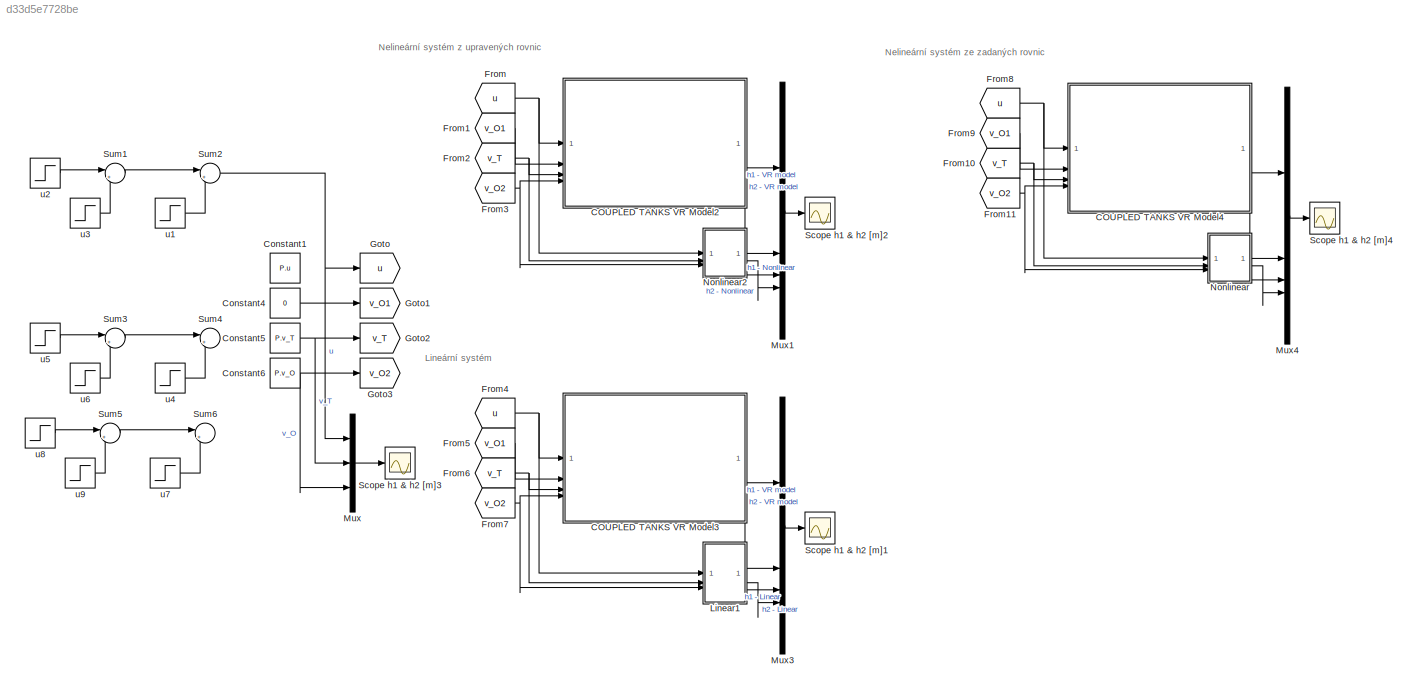
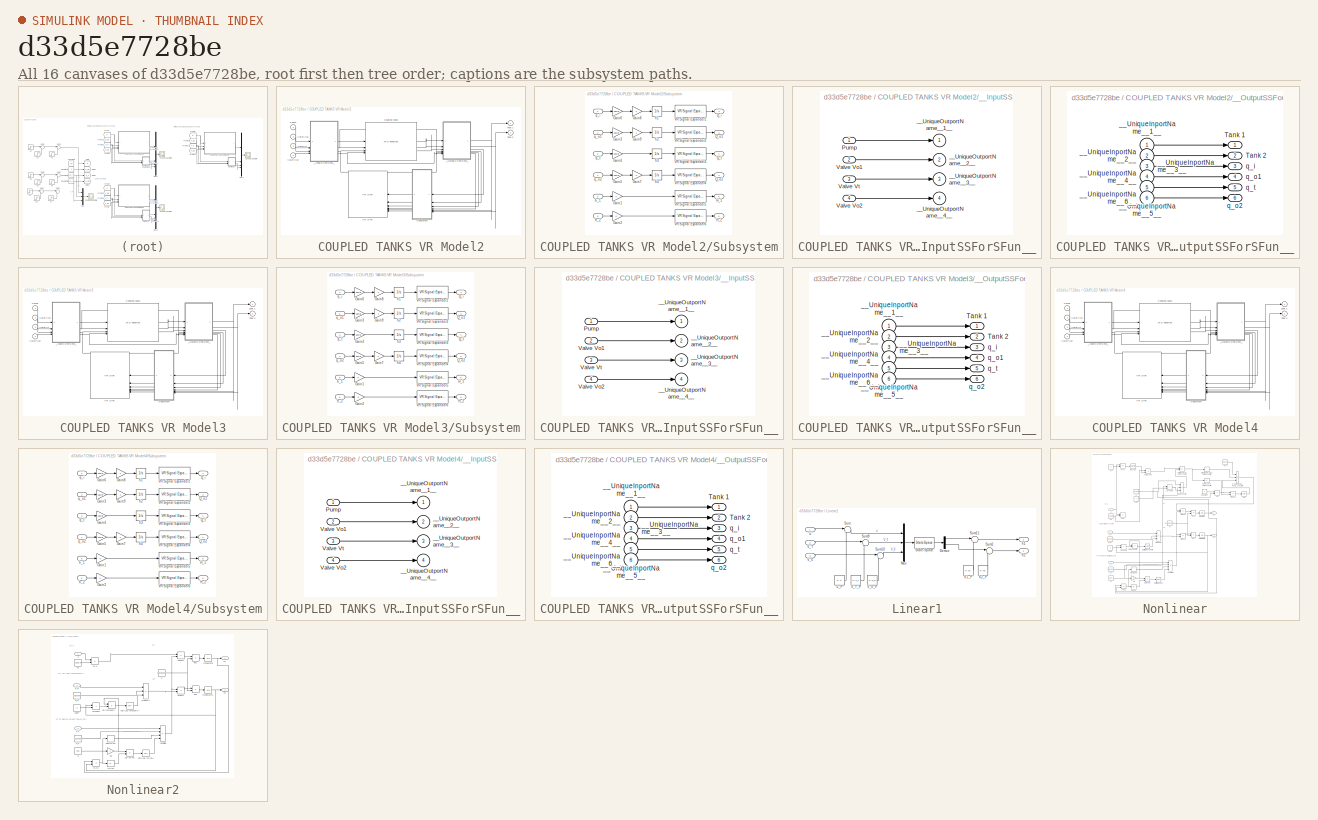
[diagram: thumbnail index - all 16 canvases of the model, root first then tree order]
MODEL slx_d33d5e7728be
KIND model
CONFIG AbsTol = auto
CONFIG EnableMultiTasking = off
CONFIG FixedStep = auto
CONFIG MaxStep = auto
CONFIG MinStep = auto
CONFIG RelTol = 1e-3
CONFIG SampleTimeConstraint = Unconstrained
CONFIG SolverName = VariableStepAuto
CONFIG StartTime = 0.0
CONFIG StopTime = 400
BLOCK [SubSystem] COUPLED TANKS VR Model2
BLOCK [M-S-Function] COUPLED TANKS VR Model2/Coupled tanks
  FunctionName = CoupledProngTanks
  Parameters = h10 h20
BLOCK [Inport] COUPLED TANKS VR Model2/Pump
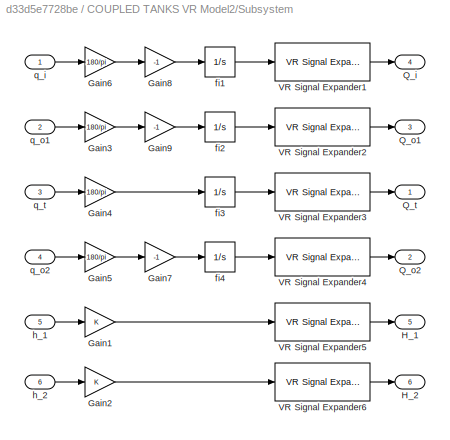
BLOCK [SubSystem] COUPLED TANKS VR Model2/Subsystem
BLOCK [Gain] COUPLED TANKS VR Model2/Subsystem/Gain1
BLOCK [Gain] COUPLED TANKS VR Model2/Subsystem/Gain2
BLOCK [Gain] COUPLED TANKS VR Model2/Subsystem/Gain3
  Gain = 180/pi
BLOCK [Gain] COUPLED TANKS VR Model2/Subsystem/Gain4
  Gain = 180/pi
BLOCK [Gain] COUPLED TANKS VR Model2/Subsystem/Gain5
  Gain = 180/pi
BLOCK [Gain] COUPLED TANKS VR Model2/Subsystem/Gain6
  Gain = 180/pi
BLOCK [Gain] COUPLED TANKS VR Model2/Subsystem/Gain7
  Gain = -1
BLOCK [Gain] COUPLED TANKS VR Model2/Subsystem/Gain8
  Gain = -1
BLOCK [Gain] COUPLED TANKS VR Model2/Subsystem/Gain9
  Gain = -1
BLOCK [Outport] COUPLED TANKS VR Model2/Subsystem/H_1
  Port = 5
BLOCK [Outport] COUPLED TANKS VR Model2/Subsystem/H_2
  Port = 6
BLOCK [Outport] COUPLED TANKS VR Model2/Subsystem/Q_i
  Port = 4
BLOCK [Outport] COUPLED TANKS VR Model2/Subsystem/Q_o1
  Port = 3
BLOCK [Outport] COUPLED TANKS VR Model2/Subsystem/Q_o2
  Port = 2
BLOCK [Outport] COUPLED TANKS VR Model2/Subsystem/Q_t
BLOCK [Reference] COUPLED TANKS VR Model2/Subsystem/VR Signal Expander1  REF=vrlib/VR Signal Expander
  SourceBlock = vrlib/VR Signal Expander
  SourceType = VR Signal Expander
BLOCK [Reference] COUPLED TANKS VR Model2/Subsystem/VR Signal Expander2  REF=vrlib/VR Signal Expander
  SourceBlock = vrlib/VR Signal Expander
  SourceType = VR Signal Expander
BLOCK [Reference] COUPLED TANKS VR Model2/Subsystem/VR Signal Expander3  REF=vrlib/VR Signal Expander
  SourceBlock = vrlib/VR Signal Expander
  SourceType = VR Signal Expander
BLOCK [Reference] COUPLED TANKS VR Model2/Subsystem/VR Signal Expander4  REF=vrlib/VR Signal Expander
  SourceBlock = vrlib/VR Signal Expander
  SourceType = VR Signal Expander
BLOCK [Reference] COUPLED TANKS VR Model2/Subsystem/VR Signal Expander5  REF=vrlib/VR Signal Expander
  SourceBlock = vrlib/VR Signal Expander
  SourceType = VR Signal Expander
BLOCK [Reference] COUPLED TANKS VR Model2/Subsystem/VR Signal Expander6  REF=vrlib/VR Signal Expander
  SourceBlock = vrlib/VR Signal Expander
  SourceType = VR Signal Expander
BLOCK [Integrator] COUPLED TANKS VR Model2/Subsystem/fi1
BLOCK [Integrator] COUPLED TANKS VR Model2/Subsystem/fi2
BLOCK [Integrator] COUPLED TANKS VR Model2/Subsystem/fi3
BLOCK [Integrator] COUPLED TANKS VR Model2/Subsystem/fi4
BLOCK [Inport] COUPLED TANKS VR Model2/Subsystem/h_1
  Port = 5
BLOCK [Inport] COUPLED TANKS VR Model2/Subsystem/h_2
  Port = 6
BLOCK [Inport] COUPLED TANKS VR Model2/Subsystem/q_i
BLOCK [Inport] COUPLED TANKS VR Model2/Subsystem/q_o1
  Port = 2
BLOCK [Inport] COUPLED TANKS VR Model2/Subsystem/q_o2
  Port = 4
BLOCK [Inport] COUPLED TANKS VR Model2/Subsystem/q_t
  Port = 3
BLOCK [Outport] COUPLED TANKS VR Model2/Tank 1
  NameLocation = top
  OutDataTypeStr = double
  PortDimensions = 1
  SampleTime = [-1 0]
  SignalType = real
BLOCK [Outport] COUPLED TANKS VR Model2/Tank 2
  OutDataTypeStr = double
  Port = 2
  PortDimensions = 1
  SampleTime = [-1 0]
  SignalType = real
BLOCK [Reference] COUPLED TANKS VR Model2/VR Sink  REF=vrlib/VR Sink
  InstantiateOnLoad = on
  SourceBlock = vrlib/VR Sink
  SourceType = Virtual Reality Sink
BLOCK [Inport] COUPLED TANKS VR Model2/Valve Vo1
  Port = 2
BLOCK [Inport] COUPLED TANKS VR Model2/Valve Vo2
  Port = 4
BLOCK [Inport] COUPLED TANKS VR Model2/Valve Vt
  Port = 3
BLOCK [SubSystem] COUPLED TANKS VR Model2/__InputSSForSFun__
  PermitHierarchicalResolution = ExplicitOnly
BLOCK [Inport] COUPLED TANKS VR Model2/__InputSSForSFun__/Pump
BLOCK [Inport] COUPLED TANKS VR Model2/__InputSSForSFun__/Valve Vo1
  NameLocation = top
  Port = 2
BLOCK [Inport] COUPLED TANKS VR Model2/__InputSSForSFun__/Valve Vo2
  Port = 4
BLOCK [Inport] COUPLED TANKS VR Model2/__InputSSForSFun__/Valve Vt
  Port = 3
BLOCK [Outport] COUPLED TANKS VR Model2/__InputSSForSFun__/__UniqueOutportName__1__
BLOCK [Outport] COUPLED TANKS VR Model2/__InputSSForSFun__/__UniqueOutportName__2__
  Port = 2
BLOCK [Outport] COUPLED TANKS VR Model2/__InputSSForSFun__/__UniqueOutportName__3__
  Port = 3
BLOCK [Outport] COUPLED TANKS VR Model2/__InputSSForSFun__/__UniqueOutportName__4__
  Port = 4
BLOCK [SubSystem] COUPLED TANKS VR Model2/__OutputSSForSFun__
  PermitHierarchicalResolution = ExplicitOnly
BLOCK [Outport] COUPLED TANKS VR Model2/__OutputSSForSFun__/Tank 1
  OutDataTypeStr = double
  PortDimensions = 1
  SampleTime = [-1 0]
  SignalType = real
BLOCK [Outport] COUPLED TANKS VR Model2/__OutputSSForSFun__/Tank 2
  OutDataTypeStr = double
  Port = 2
  PortDimensions = 1
  SampleTime = [-1 0]
  SignalType = real
BLOCK [Inport] COUPLED TANKS VR Model2/__OutputSSForSFun__/__UniqueInportName__1__
BLOCK [Inport] COUPLED TANKS VR Model2/__OutputSSForSFun__/__UniqueInportName__2__
  Port = 2
BLOCK [Inport] COUPLED TANKS VR Model2/__OutputSSForSFun__/__UniqueInportName__3__
  Port = 3
BLOCK [Inport] COUPLED TANKS VR Model2/__OutputSSForSFun__/__UniqueInportName__4__
  Port = 4
BLOCK [Inport] COUPLED TANKS VR Model2/__OutputSSForSFun__/__UniqueInportName__5__
  Port = 5
BLOCK [Inport] COUPLED TANKS VR Model2/__OutputSSForSFun__/__UniqueInportName__6__
  Port = 6
BLOCK [Outport] COUPLED TANKS VR Model2/__OutputSSForSFun__/q_i
  OutDataTypeStr = double
  Port = 3
  PortDimensions = 1
  SampleTime = [0 1]
  SignalType = real
BLOCK [Outport] COUPLED TANKS VR Model2/__OutputSSForSFun__/q_o1
  OutDataTypeStr = double
  Port = 4
  PortDimensions = 1
  SampleTime = [-1 0]
  SignalType = real
BLOCK [Outport] COUPLED TANKS VR Model2/__OutputSSForSFun__/q_o2
  OutDataTypeStr = double
  Port = 6
  PortDimensions = 1
  SampleTime = [-1 0]
  SignalType = real
BLOCK [Outport] COUPLED TANKS VR Model2/__OutputSSForSFun__/q_t
  OutDataTypeStr = double
  Port = 5
  PortDimensions = 1
  SampleTime = [-1 0]
  SignalType = real
BLOCK [SubSystem] COUPLED TANKS VR Model3
BLOCK [M-S-Function] COUPLED TANKS VR Model3/Coupled tanks
  FunctionName = CoupledProngTanks
  Parameters = h10 h20
BLOCK [Inport] COUPLED TANKS VR Model3/Pump
BLOCK [SubSystem] COUPLED TANKS VR Model3/Subsystem
BLOCK [Gain] COUPLED TANKS VR Model3/Subsystem/Gain1
BLOCK [Gain] COUPLED TANKS VR Model3/Subsystem/Gain2
BLOCK [Gain] COUPLED TANKS VR Model3/Subsystem/Gain3
  Gain = 180/pi
BLOCK [Gain] COUPLED TANKS VR Model3/Subsystem/Gain4
  Gain = 180/pi
BLOCK [Gain] COUPLED TANKS VR Model3/Subsystem/Gain5
  Gain = 180/pi
BLOCK [Gain] COUPLED TANKS VR Model3/Subsystem/Gain6
  Gain = 180/pi
BLOCK [Gain] COUPLED TANKS VR Model3/Subsystem/Gain7
  Gain = -1
BLOCK [Gain] COUPLED TANKS VR Model3/Subsystem/Gain8
  Gain = -1
BLOCK [Gain] COUPLED TANKS VR Model3/Subsystem/Gain9
  Gain = -1
BLOCK [Outport] COUPLED TANKS VR Model3/Subsystem/H_1
  Port = 5
BLOCK [Outport] COUPLED TANKS VR Model3/Subsystem/H_2
  Port = 6
BLOCK [Outport] COUPLED TANKS VR Model3/Subsystem/Q_i
  Port = 4
BLOCK [Outport] COUPLED TANKS VR Model3/Subsystem/Q_o1
  Port = 3
BLOCK [Outport] COUPLED TANKS VR Model3/Subsystem/Q_o2
  Port = 2
BLOCK [Outport] COUPLED TANKS VR Model3/Subsystem/Q_t
BLOCK [Reference] COUPLED TANKS VR Model3/Subsystem/VR Signal Expander1  REF=vrlib/VR Signal Expander
  SourceBlock = vrlib/VR Signal Expander
  SourceType = VR Signal Expander
BLOCK [Reference] COUPLED TANKS VR Model3/Subsystem/VR Signal Expander2  REF=vrlib/VR Signal Expander
  SourceBlock = vrlib/VR Signal Expander
  SourceType = VR Signal Expander
BLOCK [Reference] COUPLED TANKS VR Model3/Subsystem/VR Signal Expander3  REF=vrlib/VR Signal Expander
  SourceBlock = vrlib/VR Signal Expander
  SourceType = VR Signal Expander
BLOCK [Reference] COUPLED TANKS VR Model3/Subsystem/VR Signal Expander4  REF=vrlib/VR Signal Expander
  SourceBlock = vrlib/VR Signal Expander
  SourceType = VR Signal Expander
BLOCK [Reference] COUPLED TANKS VR Model3/Subsystem/VR Signal Expander5  REF=vrlib/VR Signal Expander
  SourceBlock = vrlib/VR Signal Expander
  SourceType = VR Signal Expander
BLOCK [Reference] COUPLED TANKS VR Model3/Subsystem/VR Signal Expander6  REF=vrlib/VR Signal Expander
  SourceBlock = vrlib/VR Signal Expander
  SourceType = VR Signal Expander
BLOCK [Integrator] COUPLED TANKS VR Model3/Subsystem/fi1
BLOCK [Integrator] COUPLED TANKS VR Model3/Subsystem/fi2
BLOCK [Integrator] COUPLED TANKS VR Model3/Subsystem/fi3
BLOCK [Integrator] COUPLED TANKS VR Model3/Subsystem/fi4
BLOCK [Inport] COUPLED TANKS VR Model3/Subsystem/h_1
  Port = 5
BLOCK [Inport] COUPLED TANKS VR Model3/Subsystem/h_2
  Port = 6
BLOCK [Inport] COUPLED TANKS VR Model3/Subsystem/q_i
BLOCK [Inport] COUPLED TANKS VR Model3/Subsystem/q_o1
  Port = 2
BLOCK [Inport] COUPLED TANKS VR Model3/Subsystem/q_o2
  Port = 4
BLOCK [Inport] COUPLED TANKS VR Model3/Subsystem/q_t
  Port = 3
BLOCK [Outport] COUPLED TANKS VR Model3/Tank 1
  NameLocation = top
  OutDataTypeStr = double
  PortDimensions = 1
  SampleTime = [-1 0]
  SignalType = real
BLOCK [Outport] COUPLED TANKS VR Model3/Tank 2
  OutDataTypeStr = double
  Port = 2
  PortDimensions = 1
  SampleTime = [-1 0]
  SignalType = real
BLOCK [Reference] COUPLED TANKS VR Model3/VR Sink  REF=vrlib/VR Sink
  InstantiateOnLoad = on
  SourceBlock = vrlib/VR Sink
  SourceType = Virtual Reality Sink
BLOCK [Inport] COUPLED TANKS VR Model3/Valve Vo1
  Port = 2
BLOCK [Inport] COUPLED TANKS VR Model3/Valve Vo2
  Port = 4
BLOCK [Inport] COUPLED TANKS VR Model3/Valve Vt
  Port = 3
BLOCK [SubSystem] COUPLED TANKS VR Model3/__InputSSForSFun__
  PermitHierarchicalResolution = ExplicitOnly
BLOCK [Inport] COUPLED TANKS VR Model3/__InputSSForSFun__/Pump
BLOCK [Inport] COUPLED TANKS VR Model3/__InputSSForSFun__/Valve Vo1
  NameLocation = top
  Port = 2
BLOCK [Inport] COUPLED TANKS VR Model3/__InputSSForSFun__/Valve Vo2
  Port = 4
BLOCK [Inport] COUPLED TANKS VR Model3/__InputSSForSFun__/Valve Vt
  Port = 3
BLOCK [Outport] COUPLED TANKS VR Model3/__InputSSForSFun__/__UniqueOutportName__1__
BLOCK [Outport] COUPLED TANKS VR Model3/__InputSSForSFun__/__UniqueOutportName__2__
  Port = 2
BLOCK [Outport] COUPLED TANKS VR Model3/__InputSSForSFun__/__UniqueOutportName__3__
  Port = 3
BLOCK [Outport] COUPLED TANKS VR Model3/__InputSSForSFun__/__UniqueOutportName__4__
  Port = 4
BLOCK [SubSystem] COUPLED TANKS VR Model3/__OutputSSForSFun__
  PermitHierarchicalResolution = ExplicitOnly
BLOCK [Outport] COUPLED TANKS VR Model3/__OutputSSForSFun__/Tank 1
  OutDataTypeStr = double
  PortDimensions = 1
  SampleTime = [-1 0]
  SignalType = real
BLOCK [Outport] COUPLED TANKS VR Model3/__OutputSSForSFun__/Tank 2
  OutDataTypeStr = double
  Port = 2
  PortDimensions = 1
  SampleTime = [-1 0]
  SignalType = real
BLOCK [Inport] COUPLED TANKS VR Model3/__OutputSSForSFun__/__UniqueInportName__1__
BLOCK [Inport] COUPLED TANKS VR Model3/__OutputSSForSFun__/__UniqueInportName__2__
  Port = 2
BLOCK [Inport] COUPLED TANKS VR Model3/__OutputSSForSFun__/__UniqueInportName__3__
  Port = 3
BLOCK [Inport] COUPLED TANKS VR Model3/__OutputSSForSFun__/__UniqueInportName__4__
  Port = 4
BLOCK [Inport] COUPLED TANKS VR Model3/__OutputSSForSFun__/__UniqueInportName__5__
  Port = 5
BLOCK [Inport] COUPLED TANKS VR Model3/__OutputSSForSFun__/__UniqueInportName__6__
  Port = 6
BLOCK [Outport] COUPLED TANKS VR Model3/__OutputSSForSFun__/q_i
  OutDataTypeStr = double
  Port = 3
  PortDimensions = 1
  SampleTime = [0 1]
  SignalType = real
BLOCK [Outport] COUPLED TANKS VR Model3/__OutputSSForSFun__/q_o1
  OutDataTypeStr = double
  Port = 4
  PortDimensions = 1
  SampleTime = [-1 0]
  SignalType = real
BLOCK [Outport] COUPLED TANKS VR Model3/__OutputSSForSFun__/q_o2
  OutDataTypeStr = double
  Port = 6
  PortDimensions = 1
  SampleTime = [-1 0]
  SignalType = real
BLOCK [Outport] COUPLED TANKS VR Model3/__OutputSSForSFun__/q_t
  OutDataTypeStr = double
  Port = 5
  PortDimensions = 1
  SampleTime = [-1 0]
  SignalType = real
BLOCK [SubSystem] COUPLED TANKS VR Model4
  Commented = on
BLOCK [M-S-Function] COUPLED TANKS VR Model4/Coupled tanks
  FunctionName = CoupledProngTanks
  Parameters = h10 h20
BLOCK [Inport] COUPLED TANKS VR Model4/Pump
BLOCK [SubSystem] COUPLED TANKS VR Model4/Subsystem
BLOCK [Gain] COUPLED TANKS VR Model4/Subsystem/Gain1
BLOCK [Gain] COUPLED TANKS VR Model4/Subsystem/Gain2
BLOCK [Gain] COUPLED TANKS VR Model4/Subsystem/Gain3
  Gain = 180/pi
BLOCK [Gain] COUPLED TANKS VR Model4/Subsystem/Gain4
  Gain = 180/pi
BLOCK [Gain] COUPLED TANKS VR Model4/Subsystem/Gain5
  Gain = 180/pi
BLOCK [Gain] COUPLED TANKS VR Model4/Subsystem/Gain6
  Gain = 180/pi
BLOCK [Gain] COUPLED TANKS VR Model4/Subsystem/Gain7
  Gain = -1
BLOCK [Gain] COUPLED TANKS VR Model4/Subsystem/Gain8
  Gain = -1
BLOCK [Gain] COUPLED TANKS VR Model4/Subsystem/Gain9
  Gain = -1
BLOCK [Outport] COUPLED TANKS VR Model4/Subsystem/H_1
  Port = 5
BLOCK [Outport] COUPLED TANKS VR Model4/Subsystem/H_2
  Port = 6
BLOCK [Outport] COUPLED TANKS VR Model4/Subsystem/Q_i
  Port = 4
BLOCK [Outport] COUPLED TANKS VR Model4/Subsystem/Q_o1
  Port = 3
BLOCK [Outport] COUPLED TANKS VR Model4/Subsystem/Q_o2
  Port = 2
BLOCK [Outport] COUPLED TANKS VR Model4/Subsystem/Q_t
BLOCK [Reference] COUPLED TANKS VR Model4/Subsystem/VR Signal Expander1  REF=vrlib/VR Signal Expander
  SourceBlock = vrlib/VR Signal Expander
  SourceType = VR Signal Expander
BLOCK [Reference] COUPLED TANKS VR Model4/Subsystem/VR Signal Expander2  REF=vrlib/VR Signal Expander
  SourceBlock = vrlib/VR Signal Expander
  SourceType = VR Signal Expander
BLOCK [Reference] COUPLED TANKS VR Model4/Subsystem/VR Signal Expander3  REF=vrlib/VR Signal Expander
  SourceBlock = vrlib/VR Signal Expander
  SourceType = VR Signal Expander
BLOCK [Reference] COUPLED TANKS VR Model4/Subsystem/VR Signal Expander4  REF=vrlib/VR Signal Expander
  SourceBlock = vrlib/VR Signal Expander
  SourceType = VR Signal Expander
BLOCK [Reference] COUPLED TANKS VR Model4/Subsystem/VR Signal Expander5  REF=vrlib/VR Signal Expander
  SourceBlock = vrlib/VR Signal Expander
  SourceType = VR Signal Expander
BLOCK [Reference] COUPLED TANKS VR Model4/Subsystem/VR Signal Expander6  REF=vrlib/VR Signal Expander
  SourceBlock = vrlib/VR Signal Expander
  SourceType = VR Signal Expander
BLOCK [Integrator] COUPLED TANKS VR Model4/Subsystem/fi1
BLOCK [Integrator] COUPLED TANKS VR Model4/Subsystem/fi2
BLOCK [Integrator] COUPLED TANKS VR Model4/Subsystem/fi3
BLOCK [Integrator] COUPLED TANKS VR Model4/Subsystem/fi4
BLOCK [Inport] COUPLED TANKS VR Model4/Subsystem/h_1
  Port = 5
BLOCK [Inport] COUPLED TANKS VR Model4/Subsystem/h_2
  Port = 6
BLOCK [Inport] COUPLED TANKS VR Model4/Subsystem/q_i
BLOCK [Inport] COUPLED TANKS VR Model4/Subsystem/q_o1
  Port = 2
BLOCK [Inport] COUPLED TANKS VR Model4/Subsystem/q_o2
  Port = 4
BLOCK [Inport] COUPLED TANKS VR Model4/Subsystem/q_t
  Port = 3
BLOCK [Outport] COUPLED TANKS VR Model4/Tank 1
  NameLocation = top
  OutDataTypeStr = double
  PortDimensions = 1
  SampleTime = [-1 0]
  SignalType = real
BLOCK [Outport] COUPLED TANKS VR Model4/Tank 2
  OutDataTypeStr = double
  Port = 2
  PortDimensions = 1
  SampleTime = [-1 0]
  SignalType = real
BLOCK [Reference] COUPLED TANKS VR Model4/VR Sink  REF=vrlib/VR Sink
  InstantiateOnLoad = on
  SourceBlock = vrlib/VR Sink
  SourceType = Virtual Reality Sink
BLOCK [Inport] COUPLED TANKS VR Model4/Valve Vo1
  Port = 2
BLOCK [Inport] COUPLED TANKS VR Model4/Valve Vo2
  Port = 4
BLOCK [Inport] COUPLED TANKS VR Model4/Valve Vt
  Port = 3
BLOCK [SubSystem] COUPLED TANKS VR Model4/__InputSSForSFun__
  PermitHierarchicalResolution = ExplicitOnly
BLOCK [Inport] COUPLED TANKS VR Model4/__InputSSForSFun__/Pump
BLOCK [Inport] COUPLED TANKS VR Model4/__InputSSForSFun__/Valve Vo1
  NameLocation = top
  Port = 2
BLOCK [Inport] COUPLED TANKS VR Model4/__InputSSForSFun__/Valve Vo2
  Port = 4
BLOCK [Inport] COUPLED TANKS VR Model4/__InputSSForSFun__/Valve Vt
  Port = 3
BLOCK [Outport] COUPLED TANKS VR Model4/__InputSSForSFun__/__UniqueOutportName__1__
BLOCK [Outport] COUPLED TANKS VR Model4/__InputSSForSFun__/__UniqueOutportName__2__
  Port = 2
BLOCK [Outport] COUPLED TANKS VR Model4/__InputSSForSFun__/__UniqueOutportName__3__
  Port = 3
BLOCK [Outport] COUPLED TANKS VR Model4/__InputSSForSFun__/__UniqueOutportName__4__
  Port = 4
BLOCK [SubSystem] COUPLED TANKS VR Model4/__OutputSSForSFun__
  PermitHierarchicalResolution = ExplicitOnly
BLOCK [Outport] COUPLED TANKS VR Model4/__OutputSSForSFun__/Tank 1
  OutDataTypeStr = double
  PortDimensions = 1
  SampleTime = [-1 0]
  SignalType = real
BLOCK [Outport] COUPLED TANKS VR Model4/__OutputSSForSFun__/Tank 2
  OutDataTypeStr = double
  Port = 2
  PortDimensions = 1
  SampleTime = [-1 0]
  SignalType = real
BLOCK [Inport] COUPLED TANKS VR Model4/__OutputSSForSFun__/__UniqueInportName__1__
BLOCK [Inport] COUPLED TANKS VR Model4/__OutputSSForSFun__/__UniqueInportName__2__
  Port = 2
BLOCK [Inport] COUPLED TANKS VR Model4/__OutputSSForSFun__/__UniqueInportName__3__
  Port = 3
BLOCK [Inport] COUPLED TANKS VR Model4/__OutputSSForSFun__/__UniqueInportName__4__
  Port = 4
BLOCK [Inport] COUPLED TANKS VR Model4/__OutputSSForSFun__/__UniqueInportName__5__
  Port = 5
BLOCK [Inport] COUPLED TANKS VR Model4/__OutputSSForSFun__/__UniqueInportName__6__
  Port = 6
BLOCK [Outport] COUPLED TANKS VR Model4/__OutputSSForSFun__/q_i
  OutDataTypeStr = double
  Port = 3
  PortDimensions = 1
  SampleTime = [0 1]
  SignalType = real
BLOCK [Outport] COUPLED TANKS VR Model4/__OutputSSForSFun__/q_o1
  OutDataTypeStr = double
  Port = 4
  PortDimensions = 1
  SampleTime = [-1 0]
  SignalType = real
BLOCK [Outport] COUPLED TANKS VR Model4/__OutputSSForSFun__/q_o2
  OutDataTypeStr = double
  Port = 6
  PortDimensions = 1
  SampleTime = [-1 0]
  SignalType = real
BLOCK [Outport] COUPLED TANKS VR Model4/__OutputSSForSFun__/q_t
  OutDataTypeStr = double
  Port = 5
  PortDimensions = 1
  SampleTime = [-1 0]
  SignalType = real
BLOCK [Constant] Constant1
  Value = P.u
BLOCK [Constant] Constant4
  Value = 0
BLOCK [Constant] Constant5
  Value = P.v_T
BLOCK [Constant] Constant6
  Value = P.v_O
BLOCK [From] From
  GotoTag = u
BLOCK [From] From1
  GotoTag = v_O1
BLOCK [From] From10
  Commented = on
  GotoTag = v_T
BLOCK [From] From11
  Commented = on
  GotoTag = v_O2
BLOCK [From] From2
  GotoTag = v_T
BLOCK [From] From3
  GotoTag = v_O2
BLOCK [From] From4
  GotoTag = u
BLOCK [From] From5
  GotoTag = v_O1
BLOCK [From] From6
  GotoTag = v_T
BLOCK [From] From7
  GotoTag = v_O2
BLOCK [From] From8
  Commented = on
  GotoTag = u
BLOCK [From] From9
  Commented = on
  GotoTag = v_O1
BLOCK [Goto] Goto
  GotoTag = u
BLOCK [Goto] Goto1
  GotoTag = v_O1
BLOCK [Goto] Goto2
  GotoTag = v_T
BLOCK [Goto] Goto3
  GotoTag = v_O2
BLOCK [SubSystem] Linear1
BLOCK [Demux] Linear1/Demux
  Outputs = 2
BLOCK [Mux] Linear1/Mux
  DisplayOption = bar
  Inputs = 3
BLOCK [StateSpace] Linear1/State-Space
  A = P.A
  B = P.B
  C = P.C
  D = P.D
  InitialCondition = 0
BLOCK [Sum] Linear1/Sum
  Inputs = |+-
BLOCK [Sum] Linear1/Sum10
  Inputs = |+-
BLOCK [Sum] Linear1/Sum11
  Inputs = |++
BLOCK [Sum] Linear1/Sum2
  Inputs = |++
BLOCK [Sum] Linear1/Sum9
  Inputs = |+-
BLOCK [Inport] Linear1/V_0
  Port = 3
BLOCK [Constant] Linear1/V_0_P
  Value = P.v_O
BLOCK [Inport] Linear1/V_T
  Port = 2
BLOCK [Constant] Linear1/V_T_P
  Value = P.v_T
BLOCK [Outport] Linear1/h1
BLOCK [Constant] Linear1/h1_P
  Value = P.h1
BLOCK [Outport] Linear1/h2
  Port = 2
BLOCK [Constant] Linear1/h2_P
  Value = P.h2
BLOCK [Inport] Linear1/u
  IconDisplay = Port number and signal name
BLOCK [Constant] Linear1/u_P
  Value = P.u
BLOCK [Mux] Mux
  DisplayOption = bar
  Inputs = 3
BLOCK [Mux] Mux1
  DisplayOption = bar
BLOCK [Mux] Mux3
  DisplayOption = bar
BLOCK [Mux] Mux4
  Commented = on
  DisplayOption = bar
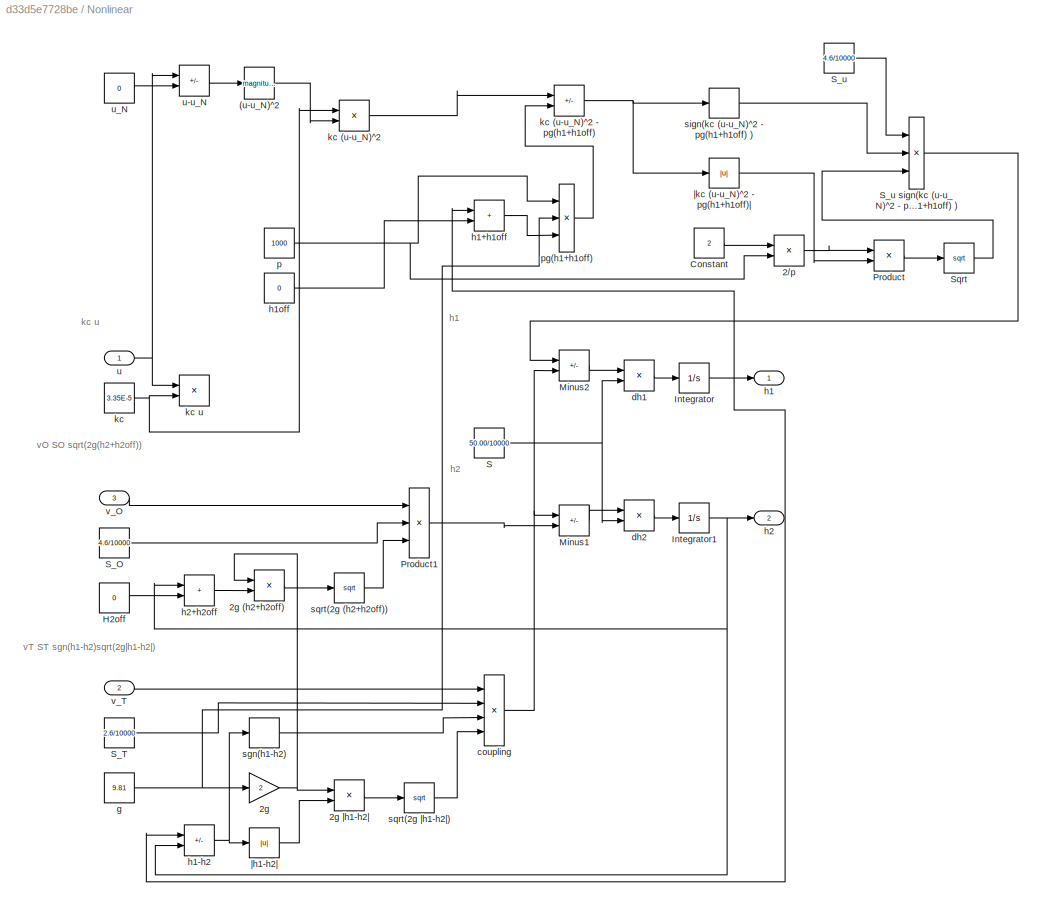
BLOCK [SubSystem] Nonlinear
  Commented = on
BLOCK [Math] Nonlinear/(u-u_N)^2
  Operator = magnitude^2
BLOCK [Product] Nonlinear/2//p
  Inputs = */
BLOCK [Gain] Nonlinear/2g
  Gain = 2
BLOCK [Product] Nonlinear/2g (h2+h2off)
BLOCK [Product] Nonlinear/2g |h1-h2|
BLOCK [Constant] Nonlinear/Constant
  Value = 2
BLOCK [Constant] Nonlinear/H2off
  Value = 0
BLOCK [Integrator] Nonlinear/Integrator
  InitialCondition = P.h1
BLOCK [Integrator] Nonlinear/Integrator1
  InitialCondition = P.h2
BLOCK [Sum] Nonlinear/Minus1
  IconShape = rectangular
  Inputs = +-
BLOCK [Sum] Nonlinear/Minus2
  IconShape = rectangular
  Inputs = +-
BLOCK [Product] Nonlinear/Product
BLOCK [Product] Nonlinear/Product1
  Inputs = 3
BLOCK [Constant] Nonlinear/S
  Value = 50.00/10000
BLOCK [Constant] Nonlinear/S_O
  Value = 4.6/10000
BLOCK [Constant] Nonlinear/S_T
  Value = 2.6/10000
BLOCK [Constant] Nonlinear/S_u
  Value = 4.6/10000
BLOCK [Product] Nonlinear/S_u sign(kc (u-u_N)^2 - pg(h1+h1off) )
  Inputs = 3
BLOCK [Sqrt] Nonlinear/Sqrt
BLOCK [Product] Nonlinear/coupling
  Inputs = 4
BLOCK [Product] Nonlinear/dh1
  Inputs = */
BLOCK [Product] Nonlinear/dh2
  Inputs = */
BLOCK [Constant] Nonlinear/g
  Value = 9.81
BLOCK [Outport] Nonlinear/h1
BLOCK [Sum] Nonlinear/h1+h1off
  IconShape = rectangular
BLOCK [Sum] Nonlinear/h1-h2
  IconShape = rectangular
  Inputs = +-
BLOCK [Constant] Nonlinear/h1off
  Value = 0
BLOCK [Outport] Nonlinear/h2
  Port = 2
BLOCK [Sum] Nonlinear/h2+h2off
  IconShape = rectangular
BLOCK [Constant] Nonlinear/kc
  Value = 3.35E-5
BLOCK [Product] Nonlinear/kc (u-u_N)^2
BLOCK [Sum] Nonlinear/kc (u-u_N)^2 - pg(h1+h1off) 
  IconShape = rectangular
  Inputs = +-
BLOCK [Product] Nonlinear/kc u
BLOCK [Constant] Nonlinear/p
  Value = 1000
BLOCK [Product] Nonlinear/pg(h1+h1off)
  Inputs = 3
BLOCK [Signum] Nonlinear/sgn(h1-h2)
BLOCK [Signum] Nonlinear/sign(kc (u-u_N)^2 - pg(h1+h1off) )
BLOCK [Sqrt] Nonlinear/sqrt(2g (h2+h2off))
BLOCK [Sqrt] Nonlinear/sqrt(2g |h1-h2|)
BLOCK [Inport] Nonlinear/u
BLOCK [Sum] Nonlinear/u-u_N
  IconShape = rectangular
  Inputs = +-
BLOCK [Constant] Nonlinear/u_N
  Value = 0
BLOCK [Inport] Nonlinear/v_O
  Port = 3
BLOCK [Inport] Nonlinear/v_T
  Port = 2
BLOCK [Abs] Nonlinear/|h1-h2|
  SaturateOnIntegerOverflow = off
BLOCK [Abs] Nonlinear/|kc (u-u_N)^2 - pg(h1+h1off)|
  SaturateOnIntegerOverflow = off
BLOCK [SubSystem] Nonlinear2
BLOCK [Gain] Nonlinear2/2g
  Gain = 2
BLOCK [Product] Nonlinear2/2g (h2+h2off)
BLOCK [Product] Nonlinear2/2g |h1-h2|
BLOCK [Constant] Nonlinear2/H2off
  Value = 0
BLOCK [Integrator] Nonlinear2/Integrator
  InitialCondition = P.h1
BLOCK [Integrator] Nonlinear2/Integrator1
  InitialCondition = P.h2
BLOCK [Sum] Nonlinear2/Minus1
  IconShape = rectangular
  Inputs = +-
BLOCK [Sum] Nonlinear2/Minus2
  IconShape = rectangular
  Inputs = +-
BLOCK [Product] Nonlinear2/Product1
  Inputs = 3
BLOCK [Constant] Nonlinear2/S
  Value = 50.00/10000
BLOCK [Constant] Nonlinear2/S_O
  Value = 4.6/10000
BLOCK [Constant] Nonlinear2/S_T
  Value = 2.6/10000
BLOCK [Product] Nonlinear2/coupling
  Inputs = 4
BLOCK [Product] Nonlinear2/dh1
  Inputs = */
BLOCK [Product] Nonlinear2/dh2
  Inputs = */
BLOCK [Constant] Nonlinear2/g
  Value = 9.81
BLOCK [Outport] Nonlinear2/h1
BLOCK [Sum] Nonlinear2/h1-h2
  IconShape = rectangular
  Inputs = +-
BLOCK [Outport] Nonlinear2/h2
  Port = 2
BLOCK [Sum] Nonlinear2/h2+h2off
  IconShape = rectangular
BLOCK [Constant] Nonlinear2/kc
  Value = 3.35E-5
BLOCK [Product] Nonlinear2/kc u
BLOCK [Signum] Nonlinear2/sgn(h1-h2)
BLOCK [Sqrt] Nonlinear2/sqrt(2g (h2+h2off))
BLOCK [Sqrt] Nonlinear2/sqrt(2g |h1-h2|)
BLOCK [Inport] Nonlinear2/u
BLOCK [Inport] Nonlinear2/v_O
  Port = 3
BLOCK [Inport] Nonlinear2/v_T
  Port = 2
BLOCK [Abs] Nonlinear2/|h1-h2|
  SaturateOnIntegerOverflow = off
BLOCK [Scope] Scope h1 & h2 [m]1
  Floating = off
  NumInputPorts = 1
  ScopeSpecificationString = Simulink.scopes.TimeScopeBlockCfg('CurrentConfiguration', extmgr.ConfigurationSet(extmgr.Configuration('Core','General UI',true,'FigureColor',[1 1 1]),extmgr.Configuration('Core','Source UI',true),extmgr.Configuration('Sources','WiredSimulink',true,'DataLoggingMaxPoints','500000','DataLoggingLimitDataPoints',true,'DataLoggingSaveFormat','Array','DataLoggingDecimation','1','DataLoggingDecimateData'...<+2257ch>
BLOCK [Scope] Scope h1 & h2 [m]2
  Floating = off
  NumInputPorts = 1
  ScopeSpecificationString = Simulink.scopes.TimeScopeBlockCfg('CurrentConfiguration', extmgr.ConfigurationSet(extmgr.Configuration('Core','General UI',true,'FigureColor',[1 1 1]),extmgr.Configuration('Core','Source UI',true),extmgr.Configuration('Sources','WiredSimulink',true,'DataLoggingMaxPoints','500000','DataLoggingLimitDataPoints',true,'DataLoggingSaveFormat','Array','DataLoggingDecimation','1','DataLoggingDecimateData'...<+2555ch>
BLOCK [Scope] Scope h1 & h2 [m]3
  Floating = off
  NumInputPorts = 1
  ScopeSpecificationString = Simulink.scopes.TimeScopeBlockCfg('CurrentConfiguration', extmgr.ConfigurationSet(extmgr.Configuration('Core','General UI',true,'FigureColor',[1 1 1]),extmgr.Configuration('Core','Source UI',true),extmgr.Configuration('Sources','WiredSimulink',true,'DataLoggingMaxPoints','500000','DataLoggingLimitDataPoints',true,'DataLoggingSaveFormat','Array','DataLoggingDecimation','1','DataLoggingDecimateData'...<+2242ch>
BLOCK [Scope] Scope h1 & h2 [m]4
  Commented = on
  Floating = off
  NumInputPorts = 1
  ScopeSpecificationString = Simulink.scopes.TimeScopeBlockCfg('CurrentConfiguration', extmgr.ConfigurationSet(extmgr.Configuration('Core','General UI',true),extmgr.Configuration('Core','Source UI',true),extmgr.Configuration('Sources','WiredSimulink',true,'DataLoggingMaxPoints','500000','DataLoggingLimitDataPoints',true,'DataLoggingSaveFormat','Array','DataLoggingDecimation','1','DataLoggingDecimateData',true,'DataLoggingVari...<+2253ch>
BLOCK [Sum] Sum1
  Inputs = |++
BLOCK [Sum] Sum2
  Inputs = |++
BLOCK [Sum] Sum3
  Inputs = |++
BLOCK [Sum] Sum4
  Inputs = |++
BLOCK [Sum] Sum5
  Inputs = |++
BLOCK [Sum] Sum6
  Inputs = |++
BLOCK [Step] u1
  After = 2
  SampleTime = 0
  Time = 300
BLOCK [Step] u2
  After = P.u+0.5
  Before = P.u
  SampleTime = 0
  Time = 100
BLOCK [Step] u3
  After = -1
  SampleTime = 0
  Time = 200
BLOCK [Step] u4
  After = 0.4
  SampleTime = 0
  Time = 300
BLOCK [Step] u5
  After = P.v_T+0.1
  Before = P.v_T
  SampleTime = 0
  Time = 100
BLOCK [Step] u6
  After = -0.2
  SampleTime = 0
  Time = 200
BLOCK [Step] u7
  After = 0.4
  SampleTime = 0
  Time = 300
BLOCK [Step] u8
  After = P.v_O+0.1
  Before = P.v_O
  SampleTime = 0
  Time = 100
BLOCK [Step] u9
  After = -0.2
  SampleTime = 0
  Time = 200
ANNOTATION (root): Lineární systém
ANNOTATION (root): Nelineární systém z upravených rovnic
ANNOTATION (root): Nelineární systém ze zadaných rovnic
ANNOTATION Nonlinear: h1
ANNOTATION Nonlinear: h2
ANNOTATION Nonlinear: kc u
ANNOTATION Nonlinear: vO SO sqrt(2g(h2+h2off))
ANNOTATION Nonlinear: vT ST sgn(h1-h2)sqrt(2g|h1-h2|)
ANNOTATION Nonlinear2: h1
ANNOTATION Nonlinear2: h2
ANNOTATION Nonlinear2: kc u
ANNOTATION Nonlinear2: vO SO sqrt(2g(h2+h2off))
ANNOTATION Nonlinear2: vT ST sgn(h1-h2)sqrt(2g|h1-h2|)
LINE COUPLED TANKS VR Model2/Coupled tanks:1 -> COUPLED TANKS VR Model2/__OutputSSForSFun__:1
LINE COUPLED TANKS VR Model2/Coupled tanks:2 -> COUPLED TANKS VR Model2/__OutputSSForSFun__:2
LINE COUPLED TANKS VR Model2/Coupled tanks:3 -> COUPLED TANKS VR Model2/__OutputSSForSFun__:3
LINE COUPLED TANKS VR Model2/Pump:1 -> COUPLED TANKS VR Model2/__InputSSForSFun__:1
LINE COUPLED TANKS VR Model2/Subsystem/Gain1:1 -> COUPLED TANKS VR Model2/Subsystem/VR Signal Expander5:1
LINE COUPLED TANKS VR Model2/Subsystem/Gain2:1 -> COUPLED TANKS VR Model2/Subsystem/VR Signal Expander6:1
LINE COUPLED TANKS VR Model2/Subsystem/Gain3:1 -> COUPLED TANKS VR Model2/Subsystem/Gain9:1
LINE COUPLED TANKS VR Model2/Subsystem/Gain4:1 -> COUPLED TANKS VR Model2/Subsystem/fi3:1
LINE COUPLED TANKS VR Model2/Subsystem/Gain5:1 -> COUPLED TANKS VR Model2/Subsystem/Gain7:1
LINE COUPLED TANKS VR Model2/Subsystem/Gain6:1 -> COUPLED TANKS VR Model2/Subsystem/Gain8:1
LINE COUPLED TANKS VR Model2/Subsystem/Gain7:1 -> COUPLED TANKS VR Model2/Subsystem/fi4:1
LINE COUPLED TANKS VR Model2/Subsystem/Gain8:1 -> COUPLED TANKS VR Model2/Subsystem/fi1:1
LINE COUPLED TANKS VR Model2/Subsystem/Gain9:1 -> COUPLED TANKS VR Model2/Subsystem/fi2:1
LINE COUPLED TANKS VR Model2/Subsystem/VR Signal Expander1:1 -> COUPLED TANKS VR Model2/Subsystem/Q_i:1
LINE COUPLED TANKS VR Model2/Subsystem/VR Signal Expander2:1 -> COUPLED TANKS VR Model2/Subsystem/Q_o1:1
LINE COUPLED TANKS VR Model2/Subsystem/VR Signal Expander3:1 -> COUPLED TANKS VR Model2/Subsystem/Q_t:1
LINE COUPLED TANKS VR Model2/Subsystem/VR Signal Expander4:1 -> COUPLED TANKS VR Model2/Subsystem/Q_o2:1
LINE COUPLED TANKS VR Model2/Subsystem/VR Signal Expander5:1 -> COUPLED TANKS VR Model2/Subsystem/H_1:1
LINE COUPLED TANKS VR Model2/Subsystem/VR Signal Expander6:1 -> COUPLED TANKS VR Model2/Subsystem/H_2:1
LINE COUPLED TANKS VR Model2/Subsystem/fi1:1 -> COUPLED TANKS VR Model2/Subsystem/VR Signal Expander1:1
LINE COUPLED TANKS VR Model2/Subsystem/fi2:1 -> COUPLED TANKS VR Model2/Subsystem/VR Signal Expander2:1
LINE COUPLED TANKS VR Model2/Subsystem/fi3:1 -> COUPLED TANKS VR Model2/Subsystem/VR Signal Expander3:1
LINE COUPLED TANKS VR Model2/Subsystem/fi4:1 -> COUPLED TANKS VR Model2/Subsystem/VR Signal Expander4:1
LINE COUPLED TANKS VR Model2/Subsystem/h_1:1 -> COUPLED TANKS VR Model2/Subsystem/Gain1:1
LINE COUPLED TANKS VR Model2/Subsystem/h_2:1 -> COUPLED TANKS VR Model2/Subsystem/Gain2:1
LINE COUPLED TANKS VR Model2/Subsystem/q_i:1 -> COUPLED TANKS VR Model2/Subsystem/Gain6:1
LINE COUPLED TANKS VR Model2/Subsystem/q_o1:1 -> COUPLED TANKS VR Model2/Subsystem/Gain3:1
LINE COUPLED TANKS VR Model2/Subsystem/q_o2:1 -> COUPLED TANKS VR Model2/Subsystem/Gain5:1
LINE COUPLED TANKS VR Model2/Subsystem/q_t:1 -> COUPLED TANKS VR Model2/Subsystem/Gain4:1
LINE COUPLED TANKS VR Model2/Subsystem:1 -> COUPLED TANKS VR Model2/VR Sink:1
LINE COUPLED TANKS VR Model2/Subsystem:2 -> COUPLED TANKS VR Model2/VR Sink:2
LINE COUPLED TANKS VR Model2/Subsystem:3 -> COUPLED TANKS VR Model2/VR Sink:3
LINE COUPLED TANKS VR Model2/Subsystem:4 -> COUPLED TANKS VR Model2/VR Sink:4
LINE COUPLED TANKS VR Model2/Subsystem:5 -> COUPLED TANKS VR Model2/VR Sink:5
LINE COUPLED TANKS VR Model2/Subsystem:6 -> COUPLED TANKS VR Model2/VR Sink:6
LINE COUPLED TANKS VR Model2/Valve Vo1:1 -> COUPLED TANKS VR Model2/__InputSSForSFun__:2
LINE COUPLED TANKS VR Model2/Valve Vo2:1 -> COUPLED TANKS VR Model2/__InputSSForSFun__:4
LINE COUPLED TANKS VR Model2/Valve Vt:1 -> COUPLED TANKS VR Model2/__InputSSForSFun__:3
LINE COUPLED TANKS VR Model2/__InputSSForSFun__/Pump:1 -> COUPLED TANKS VR Model2/__InputSSForSFun__/__UniqueOutportName__1__:1
LINE COUPLED TANKS VR Model2/__InputSSForSFun__/Valve Vo1:1 -> COUPLED TANKS VR Model2/__InputSSForSFun__/__UniqueOutportName__2__:1
LINE COUPLED TANKS VR Model2/__InputSSForSFun__/Valve Vo2:1 -> COUPLED TANKS VR Model2/__InputSSForSFun__/__UniqueOutportName__4__:1
LINE COUPLED TANKS VR Model2/__InputSSForSFun__/Valve Vt:1 -> COUPLED TANKS VR Model2/__InputSSForSFun__/__UniqueOutportName__3__:1
LINE COUPLED TANKS VR Model2/__InputSSForSFun__:1 -> COUPLED TANKS VR Model2/Coupled tanks:1
NET COUPLED TANKS VR Model2/__InputSSForSFun__:2 -> COUPLED TANKS VR Model2/Coupled tanks:2, COUPLED TANKS VR Model2/__OutputSSForSFun__:4
NET COUPLED TANKS VR Model2/__InputSSForSFun__:3 -> COUPLED TANKS VR Model2/Coupled tanks:3, COUPLED TANKS VR Model2/__OutputSSForSFun__:5
NET COUPLED TANKS VR Model2/__InputSSForSFun__:4 -> COUPLED TANKS VR Model2/Coupled tanks:4, COUPLED TANKS VR Model2/__OutputSSForSFun__:6
LINE COUPLED TANKS VR Model2/__OutputSSForSFun__/__UniqueInportName__1__:1 -> COUPLED TANKS VR Model2/__OutputSSForSFun__/Tank 1:1
LINE COUPLED TANKS VR Model2/__OutputSSForSFun__/__UniqueInportName__2__:1 -> COUPLED TANKS VR Model2/__OutputSSForSFun__/Tank 2:1
LINE COUPLED TANKS VR Model2/__OutputSSForSFun__/__UniqueInportName__3__:1 -> COUPLED TANKS VR Model2/__OutputSSForSFun__/q_i:1
LINE COUPLED TANKS VR Model2/__OutputSSForSFun__/__UniqueInportName__4__:1 -> COUPLED TANKS VR Model2/__OutputSSForSFun__/q_o1:1
LINE COUPLED TANKS VR Model2/__OutputSSForSFun__/__UniqueInportName__5__:1 -> COUPLED TANKS VR Model2/__OutputSSForSFun__/q_t:1
LINE COUPLED TANKS VR Model2/__OutputSSForSFun__/__UniqueInportName__6__:1 -> COUPLED TANKS VR Model2/__OutputSSForSFun__/q_o2:1
NET COUPLED TANKS VR Model2/__OutputSSForSFun__:1 -> COUPLED TANKS VR Model2/Subsystem:5, COUPLED TANKS VR Model2/Tank 1:1
NET COUPLED TANKS VR Model2/__OutputSSForSFun__:2 -> COUPLED TANKS VR Model2/Subsystem:6, COUPLED TANKS VR Model2/Tank 2:1
LINE COUPLED TANKS VR Model2/__OutputSSForSFun__:3 -> COUPLED TANKS VR Model2/Subsystem:1
LINE COUPLED TANKS VR Model2/__OutputSSForSFun__:4 -> COUPLED TANKS VR Model2/Subsystem:2
LINE COUPLED TANKS VR Model2/__OutputSSForSFun__:5 -> COUPLED TANKS VR Model2/Subsystem:3
LINE COUPLED TANKS VR Model2/__OutputSSForSFun__:6 -> COUPLED TANKS VR Model2/Subsystem:4
LINE COUPLED TANKS VR Model2:1 -> Mux1:1
LINE COUPLED TANKS VR Model2:2 -> Mux1:2
LINE COUPLED TANKS VR Model3/Coupled tanks:1 -> COUPLED TANKS VR Model3/__OutputSSForSFun__:1
LINE COUPLED TANKS VR Model3/Coupled tanks:2 -> COUPLED TANKS VR Model3/__OutputSSForSFun__:2
LINE COUPLED TANKS VR Model3/Coupled tanks:3 -> COUPLED TANKS VR Model3/__OutputSSForSFun__:3
LINE COUPLED TANKS VR Model3/Pump:1 -> COUPLED TANKS VR Model3/__InputSSForSFun__:1
LINE COUPLED TANKS VR Model3/Subsystem/Gain1:1 -> COUPLED TANKS VR Model3/Subsystem/VR Signal Expander5:1
LINE COUPLED TANKS VR Model3/Subsystem/Gain2:1 -> COUPLED TANKS VR Model3/Subsystem/VR Signal Expander6:1
LINE COUPLED TANKS VR Model3/Subsystem/Gain3:1 -> COUPLED TANKS VR Model3/Subsystem/Gain9:1
LINE COUPLED TANKS VR Model3/Subsystem/Gain4:1 -> COUPLED TANKS VR Model3/Subsystem/fi3:1
LINE COUPLED TANKS VR Model3/Subsystem/Gain5:1 -> COUPLED TANKS VR Model3/Subsystem/Gain7:1
LINE COUPLED TANKS VR Model3/Subsystem/Gain6:1 -> COUPLED TANKS VR Model3/Subsystem/Gain8:1
LINE COUPLED TANKS VR Model3/Subsystem/Gain7:1 -> COUPLED TANKS VR Model3/Subsystem/fi4:1
LINE COUPLED TANKS VR Model3/Subsystem/Gain8:1 -> COUPLED TANKS VR Model3/Subsystem/fi1:1
LINE COUPLED TANKS VR Model3/Subsystem/Gain9:1 -> COUPLED TANKS VR Model3/Subsystem/fi2:1
LINE COUPLED TANKS VR Model3/Subsystem/VR Signal Expander1:1 -> COUPLED TANKS VR Model3/Subsystem/Q_i:1
LINE COUPLED TANKS VR Model3/Subsystem/VR Signal Expander2:1 -> COUPLED TANKS VR Model3/Subsystem/Q_o1:1
LINE COUPLED TANKS VR Model3/Subsystem/VR Signal Expander3:1 -> COUPLED TANKS VR Model3/Subsystem/Q_t:1
LINE COUPLED TANKS VR Model3/Subsystem/VR Signal Expander4:1 -> COUPLED TANKS VR Model3/Subsystem/Q_o2:1
LINE COUPLED TANKS VR Model3/Subsystem/VR Signal Expander5:1 -> COUPLED TANKS VR Model3/Subsystem/H_1:1
LINE COUPLED TANKS VR Model3/Subsystem/VR Signal Expander6:1 -> COUPLED TANKS VR Model3/Subsystem/H_2:1
LINE COUPLED TANKS VR Model3/Subsystem/fi1:1 -> COUPLED TANKS VR Model3/Subsystem/VR Signal Expander1:1
LINE COUPLED TANKS VR Model3/Subsystem/fi2:1 -> COUPLED TANKS VR Model3/Subsystem/VR Signal Expander2:1
LINE COUPLED TANKS VR Model3/Subsystem/fi3:1 -> COUPLED TANKS VR Model3/Subsystem/VR Signal Expander3:1
LINE COUPLED TANKS VR Model3/Subsystem/fi4:1 -> COUPLED TANKS VR Model3/Subsystem/VR Signal Expander4:1
LINE COUPLED TANKS VR Model3/Subsystem/h_1:1 -> COUPLED TANKS VR Model3/Subsystem/Gain1:1
LINE COUPLED TANKS VR Model3/Subsystem/h_2:1 -> COUPLED TANKS VR Model3/Subsystem/Gain2:1
LINE COUPLED TANKS VR Model3/Subsystem/q_i:1 -> COUPLED TANKS VR Model3/Subsystem/Gain6:1
LINE COUPLED TANKS VR Model3/Subsystem/q_o1:1 -> COUPLED TANKS VR Model3/Subsystem/Gain3:1
LINE COUPLED TANKS VR Model3/Subsystem/q_o2:1 -> COUPLED TANKS VR Model3/Subsystem/Gain5:1
LINE COUPLED TANKS VR Model3/Subsystem/q_t:1 -> COUPLED TANKS VR Model3/Subsystem/Gain4:1
LINE COUPLED TANKS VR Model3/Subsystem:1 -> COUPLED TANKS VR Model3/VR Sink:1
LINE COUPLED TANKS VR Model3/Subsystem:2 -> COUPLED TANKS VR Model3/VR Sink:2
LINE COUPLED TANKS VR Model3/Subsystem:3 -> COUPLED TANKS VR Model3/VR Sink:3
LINE COUPLED TANKS VR Model3/Subsystem:4 -> COUPLED TANKS VR Model3/VR Sink:4
LINE COUPLED TANKS VR Model3/Subsystem:5 -> COUPLED TANKS VR Model3/VR Sink:5
LINE COUPLED TANKS VR Model3/Subsystem:6 -> COUPLED TANKS VR Model3/VR Sink:6
LINE COUPLED TANKS VR Model3/Valve Vo1:1 -> COUPLED TANKS VR Model3/__InputSSForSFun__:2
LINE COUPLED TANKS VR Model3/Valve Vo2:1 -> COUPLED TANKS VR Model3/__InputSSForSFun__:4
LINE COUPLED TANKS VR Model3/Valve Vt:1 -> COUPLED TANKS VR Model3/__InputSSForSFun__:3
LINE COUPLED TANKS VR Model3/__InputSSForSFun__/Pump:1 -> COUPLED TANKS VR Model3/__InputSSForSFun__/__UniqueOutportName__1__:1
LINE COUPLED TANKS VR Model3/__InputSSForSFun__/Valve Vo1:1 -> COUPLED TANKS VR Model3/__InputSSForSFun__/__UniqueOutportName__2__:1
LINE COUPLED TANKS VR Model3/__InputSSForSFun__/Valve Vo2:1 -> COUPLED TANKS VR Model3/__InputSSForSFun__/__UniqueOutportName__4__:1
LINE COUPLED TANKS VR Model3/__InputSSForSFun__/Valve Vt:1 -> COUPLED TANKS VR Model3/__InputSSForSFun__/__UniqueOutportName__3__:1
LINE COUPLED TANKS VR Model3/__InputSSForSFun__:1 -> COUPLED TANKS VR Model3/Coupled tanks:1
NET COUPLED TANKS VR Model3/__InputSSForSFun__:2 -> COUPLED TANKS VR Model3/Coupled tanks:2, COUPLED TANKS VR Model3/__OutputSSForSFun__:4
NET COUPLED TANKS VR Model3/__InputSSForSFun__:3 -> COUPLED TANKS VR Model3/Coupled tanks:3, COUPLED TANKS VR Model3/__OutputSSForSFun__:5
NET COUPLED TANKS VR Model3/__InputSSForSFun__:4 -> COUPLED TANKS VR Model3/Coupled tanks:4, COUPLED TANKS VR Model3/__OutputSSForSFun__:6
LINE COUPLED TANKS VR Model3/__OutputSSForSFun__/__UniqueInportName__1__:1 -> COUPLED TANKS VR Model3/__OutputSSForSFun__/Tank 1:1
LINE COUPLED TANKS VR Model3/__OutputSSForSFun__/__UniqueInportName__2__:1 -> COUPLED TANKS VR Model3/__OutputSSForSFun__/Tank 2:1
LINE COUPLED TANKS VR Model3/__OutputSSForSFun__/__UniqueInportName__3__:1 -> COUPLED TANKS VR Model3/__OutputSSForSFun__/q_i:1
LINE COUPLED TANKS VR Model3/__OutputSSForSFun__/__UniqueInportName__4__:1 -> COUPLED TANKS VR Model3/__OutputSSForSFun__/q_o1:1
LINE COUPLED TANKS VR Model3/__OutputSSForSFun__/__UniqueInportName__5__:1 -> COUPLED TANKS VR Model3/__OutputSSForSFun__/q_t:1
LINE COUPLED TANKS VR Model3/__OutputSSForSFun__/__UniqueInportName__6__:1 -> COUPLED TANKS VR Model3/__OutputSSForSFun__/q_o2:1
NET COUPLED TANKS VR Model3/__OutputSSForSFun__:1 -> COUPLED TANKS VR Model3/Subsystem:5, COUPLED TANKS VR Model3/Tank 1:1
NET COUPLED TANKS VR Model3/__OutputSSForSFun__:2 -> COUPLED TANKS VR Model3/Subsystem:6, COUPLED TANKS VR Model3/Tank 2:1
LINE COUPLED TANKS VR Model3/__OutputSSForSFun__:3 -> COUPLED TANKS VR Model3/Subsystem:1
LINE COUPLED TANKS VR Model3/__OutputSSForSFun__:4 -> COUPLED TANKS VR Model3/Subsystem:2
LINE COUPLED TANKS VR Model3/__OutputSSForSFun__:5 -> COUPLED TANKS VR Model3/Subsystem:3
LINE COUPLED TANKS VR Model3/__OutputSSForSFun__:6 -> COUPLED TANKS VR Model3/Subsystem:4
LINE COUPLED TANKS VR Model3:1 -> Mux3:1
LINE COUPLED TANKS VR Model3:2 -> Mux3:2
LINE COUPLED TANKS VR Model4/Coupled tanks:1 -> COUPLED TANKS VR Model4/__OutputSSForSFun__:1
LINE COUPLED TANKS VR Model4/Coupled tanks:2 -> COUPLED TANKS VR Model4/__OutputSSForSFun__:2
LINE COUPLED TANKS VR Model4/Coupled tanks:3 -> COUPLED TANKS VR Model4/__OutputSSForSFun__:3
LINE COUPLED TANKS VR Model4/Pump:1 -> COUPLED TANKS VR Model4/__InputSSForSFun__:1
LINE COUPLED TANKS VR Model4/Subsystem/Gain1:1 -> COUPLED TANKS VR Model4/Subsystem/VR Signal Expander5:1
LINE COUPLED TANKS VR Model4/Subsystem/Gain2:1 -> COUPLED TANKS VR Model4/Subsystem/VR Signal Expander6:1
LINE COUPLED TANKS VR Model4/Subsystem/Gain3:1 -> COUPLED TANKS VR Model4/Subsystem/Gain9:1
LINE COUPLED TANKS VR Model4/Subsystem/Gain4:1 -> COUPLED TANKS VR Model4/Subsystem/fi3:1
LINE COUPLED TANKS VR Model4/Subsystem/Gain5:1 -> COUPLED TANKS VR Model4/Subsystem/Gain7:1
LINE COUPLED TANKS VR Model4/Subsystem/Gain6:1 -> COUPLED TANKS VR Model4/Subsystem/Gain8:1
LINE COUPLED TANKS VR Model4/Subsystem/Gain7:1 -> COUPLED TANKS VR Model4/Subsystem/fi4:1
LINE COUPLED TANKS VR Model4/Subsystem/Gain8:1 -> COUPLED TANKS VR Model4/Subsystem/fi1:1
LINE COUPLED TANKS VR Model4/Subsystem/Gain9:1 -> COUPLED TANKS VR Model4/Subsystem/fi2:1
LINE COUPLED TANKS VR Model4/Subsystem/VR Signal Expander1:1 -> COUPLED TANKS VR Model4/Subsystem/Q_i:1
LINE COUPLED TANKS VR Model4/Subsystem/VR Signal Expander2:1 -> COUPLED TANKS VR Model4/Subsystem/Q_o1:1
LINE COUPLED TANKS VR Model4/Subsystem/VR Signal Expander3:1 -> COUPLED TANKS VR Model4/Subsystem/Q_t:1
LINE COUPLED TANKS VR Model4/Subsystem/VR Signal Expander4:1 -> COUPLED TANKS VR Model4/Subsystem/Q_o2:1
LINE COUPLED TANKS VR Model4/Subsystem/VR Signal Expander5:1 -> COUPLED TANKS VR Model4/Subsystem/H_1:1
LINE COUPLED TANKS VR Model4/Subsystem/VR Signal Expander6:1 -> COUPLED TANKS VR Model4/Subsystem/H_2:1
LINE COUPLED TANKS VR Model4/Subsystem/fi1:1 -> COUPLED TANKS VR Model4/Subsystem/VR Signal Expander1:1
LINE COUPLED TANKS VR Model4/Subsystem/fi2:1 -> COUPLED TANKS VR Model4/Subsystem/VR Signal Expander2:1
LINE COUPLED TANKS VR Model4/Subsystem/fi3:1 -> COUPLED TANKS VR Model4/Subsystem/VR Signal Expander3:1
LINE COUPLED TANKS VR Model4/Subsystem/fi4:1 -> COUPLED TANKS VR Model4/Subsystem/VR Signal Expander4:1
LINE COUPLED TANKS VR Model4/Subsystem/h_1:1 -> COUPLED TANKS VR Model4/Subsystem/Gain1:1
LINE COUPLED TANKS VR Model4/Subsystem/h_2:1 -> COUPLED TANKS VR Model4/Subsystem/Gain2:1
LINE COUPLED TANKS VR Model4/Subsystem/q_i:1 -> COUPLED TANKS VR Model4/Subsystem/Gain6:1
LINE COUPLED TANKS VR Model4/Subsystem/q_o1:1 -> COUPLED TANKS VR Model4/Subsystem/Gain3:1
LINE COUPLED TANKS VR Model4/Subsystem/q_o2:1 -> COUPLED TANKS VR Model4/Subsystem/Gain5:1
LINE COUPLED TANKS VR Model4/Subsystem/q_t:1 -> COUPLED TANKS VR Model4/Subsystem/Gain4:1
LINE COUPLED TANKS VR Model4/Subsystem:1 -> COUPLED TANKS VR Model4/VR Sink:1
LINE COUPLED TANKS VR Model4/Subsystem:2 -> COUPLED TANKS VR Model4/VR Sink:2
LINE COUPLED TANKS VR Model4/Subsystem:3 -> COUPLED TANKS VR Model4/VR Sink:3
LINE COUPLED TANKS VR Model4/Subsystem:4 -> COUPLED TANKS VR Model4/VR Sink:4
LINE COUPLED TANKS VR Model4/Subsystem:5 -> COUPLED TANKS VR Model4/VR Sink:5
LINE COUPLED TANKS VR Model4/Subsystem:6 -> COUPLED TANKS VR Model4/VR Sink:6
LINE COUPLED TANKS VR Model4/Valve Vo1:1 -> COUPLED TANKS VR Model4/__InputSSForSFun__:2
LINE COUPLED TANKS VR Model4/Valve Vo2:1 -> COUPLED TANKS VR Model4/__InputSSForSFun__:4
LINE COUPLED TANKS VR Model4/Valve Vt:1 -> COUPLED TANKS VR Model4/__InputSSForSFun__:3
LINE COUPLED TANKS VR Model4/__InputSSForSFun__/Pump:1 -> COUPLED TANKS VR Model4/__InputSSForSFun__/__UniqueOutportName__1__:1
LINE COUPLED TANKS VR Model4/__InputSSForSFun__/Valve Vo1:1 -> COUPLED TANKS VR Model4/__InputSSForSFun__/__UniqueOutportName__2__:1
LINE COUPLED TANKS VR Model4/__InputSSForSFun__/Valve Vo2:1 -> COUPLED TANKS VR Model4/__InputSSForSFun__/__UniqueOutportName__4__:1
LINE COUPLED TANKS VR Model4/__InputSSForSFun__/Valve Vt:1 -> COUPLED TANKS VR Model4/__InputSSForSFun__/__UniqueOutportName__3__:1
LINE COUPLED TANKS VR Model4/__InputSSForSFun__:1 -> COUPLED TANKS VR Model4/Coupled tanks:1
NET COUPLED TANKS VR Model4/__InputSSForSFun__:2 -> COUPLED TANKS VR Model4/Coupled tanks:2, COUPLED TANKS VR Model4/__OutputSSForSFun__:4
NET COUPLED TANKS VR Model4/__InputSSForSFun__:3 -> COUPLED TANKS VR Model4/Coupled tanks:3, COUPLED TANKS VR Model4/__OutputSSForSFun__:5
NET COUPLED TANKS VR Model4/__InputSSForSFun__:4 -> COUPLED TANKS VR Model4/Coupled tanks:4, COUPLED TANKS VR Model4/__OutputSSForSFun__:6
LINE COUPLED TANKS VR Model4/__OutputSSForSFun__/__UniqueInportName__1__:1 -> COUPLED TANKS VR Model4/__OutputSSForSFun__/Tank 1:1
LINE COUPLED TANKS VR Model4/__OutputSSForSFun__/__UniqueInportName__2__:1 -> COUPLED TANKS VR Model4/__OutputSSForSFun__/Tank 2:1
LINE COUPLED TANKS VR Model4/__OutputSSForSFun__/__UniqueInportName__3__:1 -> COUPLED TANKS VR Model4/__OutputSSForSFun__/q_i:1
LINE COUPLED TANKS VR Model4/__OutputSSForSFun__/__UniqueInportName__4__:1 -> COUPLED TANKS VR Model4/__OutputSSForSFun__/q_o1:1
LINE COUPLED TANKS VR Model4/__OutputSSForSFun__/__UniqueInportName__5__:1 -> COUPLED TANKS VR Model4/__OutputSSForSFun__/q_t:1
LINE COUPLED TANKS VR Model4/__OutputSSForSFun__/__UniqueInportName__6__:1 -> COUPLED TANKS VR Model4/__OutputSSForSFun__/q_o2:1
NET COUPLED TANKS VR Model4/__OutputSSForSFun__:1 -> COUPLED TANKS VR Model4/Subsystem:5, COUPLED TANKS VR Model4/Tank 1:1
NET COUPLED TANKS VR Model4/__OutputSSForSFun__:2 -> COUPLED TANKS VR Model4/Subsystem:6, COUPLED TANKS VR Model4/Tank 2:1
LINE COUPLED TANKS VR Model4/__OutputSSForSFun__:3 -> COUPLED TANKS VR Model4/Subsystem:1
LINE COUPLED TANKS VR Model4/__OutputSSForSFun__:4 -> COUPLED TANKS VR Model4/Subsystem:2
LINE COUPLED TANKS VR Model4/__OutputSSForSFun__:5 -> COUPLED TANKS VR Model4/Subsystem:3
LINE COUPLED TANKS VR Model4/__OutputSSForSFun__:6 -> COUPLED TANKS VR Model4/Subsystem:4
LINE COUPLED TANKS VR Model4:1 -> Mux4:1
LINE COUPLED TANKS VR Model4:2 -> Mux4:2
LINE Constant4:1 -> Goto1:1
NET Constant5:1 -> Goto2:1, Mux:2
NET Constant6:1 -> Goto3:1, Mux:3
NET From10:1 -> COUPLED TANKS VR Model4:3, Nonlinear:2
NET From11:1 -> COUPLED TANKS VR Model4:4, Nonlinear:3
LINE From1:1 -> COUPLED TANKS VR Model2:2
NET From2:1 -> COUPLED TANKS VR Model2:3, Nonlinear2:2
NET From3:1 -> COUPLED TANKS VR Model2:4, Nonlinear2:3
NET From4:1 -> COUPLED TANKS VR Model3:1, Linear1:1
LINE From5:1 -> COUPLED TANKS VR Model3:2
NET From6:1 -> COUPLED TANKS VR Model3:3, Linear1:2
NET From7:1 -> COUPLED TANKS VR Model3:4, Linear1:3
NET From8:1 -> COUPLED TANKS VR Model4:1, Nonlinear:1
LINE From9:1 -> COUPLED TANKS VR Model4:2
NET From:1 -> COUPLED TANKS VR Model2:1, Nonlinear2:1
LINE Linear1/Demux:1 -> Linear1/Sum11:1
LINE Linear1/Demux:2 -> Linear1/Sum2:1
LINE Linear1/Mux:1 -> Linear1/State-Space:1
LINE Linear1/State-Space:1 -> Linear1/Demux:1
LINE Linear1/Sum10:1 -> Linear1/Mux:3
LINE Linear1/Sum11:1 -> Linear1/h1:1
LINE Linear1/Sum2:1 -> Linear1/h2:1
LINE Linear1/Sum9:1 -> Linear1/Mux:2
LINE Linear1/Sum:1 -> Linear1/Mux:1
LINE Linear1/V_0:1 -> Linear1/Sum10:1
LINE Linear1/V_0_P:1 -> Linear1/Sum10:2
LINE Linear1/V_T:1 -> Linear1/Sum9:1
LINE Linear1/V_T_P:1 -> Linear1/Sum9:2
LINE Linear1/h1_P:1 -> Linear1/Sum11:2
LINE Linear1/h2_P:1 -> Linear1/Sum2:2
LINE Linear1/u:1 -> Linear1/Sum:1
LINE Linear1/u_P:1 -> Linear1/Sum:2
LINE Linear1:1 -> Mux3:3
LINE Linear1:2 -> Mux3:4
LINE Mux1:1 -> Scope h1 & h2 [m]2:1
LINE Mux3:1 -> Scope h1 & h2 [m]1:1
LINE Mux4:1 -> Scope h1 & h2 [m]4:1
LINE Mux:1 -> Scope h1 & h2 [m]3:1
LINE Nonlinear/(u-u_N)^2:1 -> Nonlinear/kc (u-u_N)^2:2
LINE Nonlinear/2//p:1 -> Nonlinear/Product:1
LINE Nonlinear/2g (h2+h2off):1 -> Nonlinear/sqrt(2g (h2+h2off)):1
LINE Nonlinear/2g |h1-h2|:1 -> Nonlinear/sqrt(2g |h1-h2|):1
NET Nonlinear/2g:1 -> Nonlinear/2g (h2+h2off):1, Nonlinear/2g |h1-h2|:1
LINE Nonlinear/Constant:1 -> Nonlinear/2//p:1
LINE Nonlinear/H2off:1 -> Nonlinear/h2+h2off:2
NET Nonlinear/Integrator1:1 -> Nonlinear/h1-h2:2, Nonlinear/h2+h2off:1, Nonlinear/h2:1
NET Nonlinear/Integrator:1 -> Nonlinear/h1+h1off:1, Nonlinear/h1-h2:1, Nonlinear/h1:1
LINE Nonlinear/Minus1:1 -> Nonlinear/dh2:1
LINE Nonlinear/Minus2:1 -> Nonlinear/dh1:1
LINE Nonlinear/Product1:1 -> Nonlinear/Minus1:2
LINE Nonlinear/Product:1 -> Nonlinear/Sqrt:1
NET Nonlinear/S:1 -> Nonlinear/dh1:2, Nonlinear/dh2:2
LINE Nonlinear/S_O:1 -> Nonlinear/Product1:2
LINE Nonlinear/S_T:1 -> Nonlinear/coupling:2
LINE Nonlinear/S_u sign(kc (u-u_N)^2 - pg(h1+h1off) ):1 -> Nonlinear/Minus2:1
LINE Nonlinear/S_u:1 -> Nonlinear/S_u sign(kc (u-u_N)^2 - pg(h1+h1off) ):1
LINE Nonlinear/Sqrt:1 -> Nonlinear/S_u sign(kc (u-u_N)^2 - pg(h1+h1off) ):3
NET Nonlinear/coupling:1 -> Nonlinear/Minus1:1, Nonlinear/Minus2:2
LINE Nonlinear/dh1:1 -> Nonlinear/Integrator:1
LINE Nonlinear/dh2:1 -> Nonlinear/Integrator1:1
NET Nonlinear/g:1 -> Nonlinear/2g:1, Nonlinear/pg(h1+h1off):2
LINE Nonlinear/h1+h1off:1 -> Nonlinear/pg(h1+h1off):3
NET Nonlinear/h1-h2:1 -> Nonlinear/sgn(h1-h2):1, Nonlinear/|h1-h2|:1
LINE Nonlinear/h1off:1 -> Nonlinear/h1+h1off:2
LINE Nonlinear/h2+h2off:1 -> Nonlinear/2g (h2+h2off):2
NET Nonlinear/kc (u-u_N)^2 - pg(h1+h1off) :1 -> Nonlinear/sign(kc (u-u_N)^2 - pg(h1+h1off) ):1, Nonlinear/|kc (u-u_N)^2 - pg(h1+h1off)|:1
LINE Nonlinear/kc (u-u_N)^2:1 -> Nonlinear/kc (u-u_N)^2 - pg(h1+h1off) :1
NET Nonlinear/kc:1 -> Nonlinear/kc (u-u_N)^2:1, Nonlinear/kc u:2
NET Nonlinear/p:1 -> Nonlinear/2//p:2, Nonlinear/pg(h1+h1off):1
LINE Nonlinear/pg(h1+h1off):1 -> Nonlinear/kc (u-u_N)^2 - pg(h1+h1off) :2
LINE Nonlinear/sgn(h1-h2):1 -> Nonlinear/coupling:3
LINE Nonlinear/sign(kc (u-u_N)^2 - pg(h1+h1off) ):1 -> Nonlinear/S_u sign(kc (u-u_N)^2 - pg(h1+h1off) ):2
LINE Nonlinear/sqrt(2g (h2+h2off)):1 -> Nonlinear/Product1:3
LINE Nonlinear/sqrt(2g |h1-h2|):1 -> Nonlinear/coupling:4
LINE Nonlinear/u-u_N:1 -> Nonlinear/(u-u_N)^2:1
NET Nonlinear/u:1 -> Nonlinear/kc u:1, Nonlinear/u-u_N:1
LINE Nonlinear/u_N:1 -> Nonlinear/u-u_N:2
LINE Nonlinear/v_O:1 -> Nonlinear/Product1:1
LINE Nonlinear/v_T:1 -> Nonlinear/coupling:1
LINE Nonlinear/|h1-h2|:1 -> Nonlinear/2g |h1-h2|:2
LINE Nonlinear/|kc (u-u_N)^2 - pg(h1+h1off)|:1 -> Nonlinear/Product:2
LINE Nonlinear2/2g (h2+h2off):1 -> Nonlinear2/sqrt(2g (h2+h2off)):1
LINE Nonlinear2/2g |h1-h2|:1 -> Nonlinear2/sqrt(2g |h1-h2|):1
NET Nonlinear2/2g:1 -> Nonlinear2/2g (h2+h2off):1, Nonlinear2/2g |h1-h2|:1
LINE Nonlinear2/H2off:1 -> Nonlinear2/h2+h2off:2
NET Nonlinear2/Integrator1:1 -> Nonlinear2/h1-h2:2, Nonlinear2/h2+h2off:1, Nonlinear2/h2:1
NET Nonlinear2/Integrator:1 -> Nonlinear2/h1-h2:1, Nonlinear2/h1:1
LINE Nonlinear2/Minus1:1 -> Nonlinear2/dh2:1
LINE Nonlinear2/Minus2:1 -> Nonlinear2/dh1:1
LINE Nonlinear2/Product1:1 -> Nonlinear2/Minus1:2
NET Nonlinear2/S:1 -> Nonlinear2/dh1:2, Nonlinear2/dh2:2
LINE Nonlinear2/S_O:1 -> Nonlinear2/Product1:2
LINE Nonlinear2/S_T:1 -> Nonlinear2/coupling:2
NET Nonlinear2/coupling:1 -> Nonlinear2/Minus1:1, Nonlinear2/Minus2:2
LINE Nonlinear2/dh1:1 -> Nonlinear2/Integrator:1
LINE Nonlinear2/dh2:1 -> Nonlinear2/Integrator1:1
LINE Nonlinear2/g:1 -> Nonlinear2/2g:1
NET Nonlinear2/h1-h2:1 -> Nonlinear2/sgn(h1-h2):1, Nonlinear2/|h1-h2|:1
LINE Nonlinear2/h2+h2off:1 -> Nonlinear2/2g (h2+h2off):2
LINE Nonlinear2/kc u:1 -> Nonlinear2/Minus2:1
LINE Nonlinear2/kc:1 -> Nonlinear2/kc u:2
LINE Nonlinear2/sgn(h1-h2):1 -> Nonlinear2/coupling:3
LINE Nonlinear2/sqrt(2g (h2+h2off)):1 -> Nonlinear2/Product1:3
LINE Nonlinear2/sqrt(2g |h1-h2|):1 -> Nonlinear2/coupling:4
LINE Nonlinear2/u:1 -> Nonlinear2/kc u:1
LINE Nonlinear2/v_O:1 -> Nonlinear2/Product1:1
LINE Nonlinear2/v_T:1 -> Nonlinear2/coupling:1
LINE Nonlinear2/|h1-h2|:1 -> Nonlinear2/2g |h1-h2|:2
LINE Nonlinear2:1 -> Mux1:3
LINE Nonlinear2:2 -> Mux1:4
LINE Nonlinear:1 -> Mux4:3
LINE Nonlinear:2 -> Mux4:4
LINE Sum1:1 -> Sum2:1
NET Sum2:1 -> Goto:1, Mux:1
LINE Sum3:1 -> Sum4:1
LINE Sum5:1 -> Sum6:1
LINE u1:1 -> Sum2:2
LINE u2:1 -> Sum1:1
LINE u3:1 -> Sum1:2
LINE u4:1 -> Sum4:2
LINE u5:1 -> Sum3:1
LINE u6:1 -> Sum3:2
LINE u7:1 -> Sum6:2
LINE u8:1 -> Sum5:1
LINE u9:1 -> Sum5:2
note: NET lines group one-source signal fan-out (src -> all destinations, sorted); 1:1 wires keep LINE
